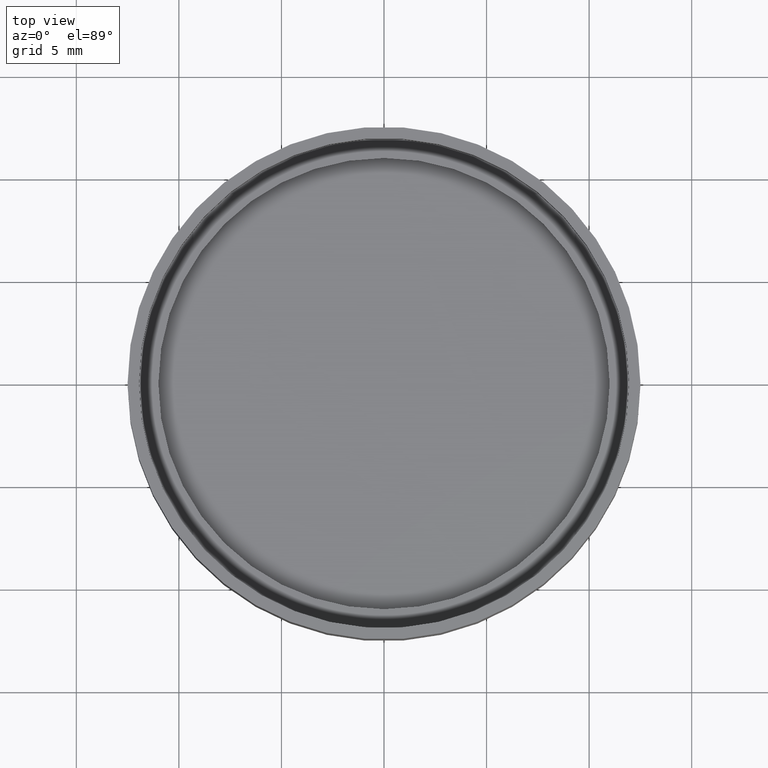
[diagram: clean part render]
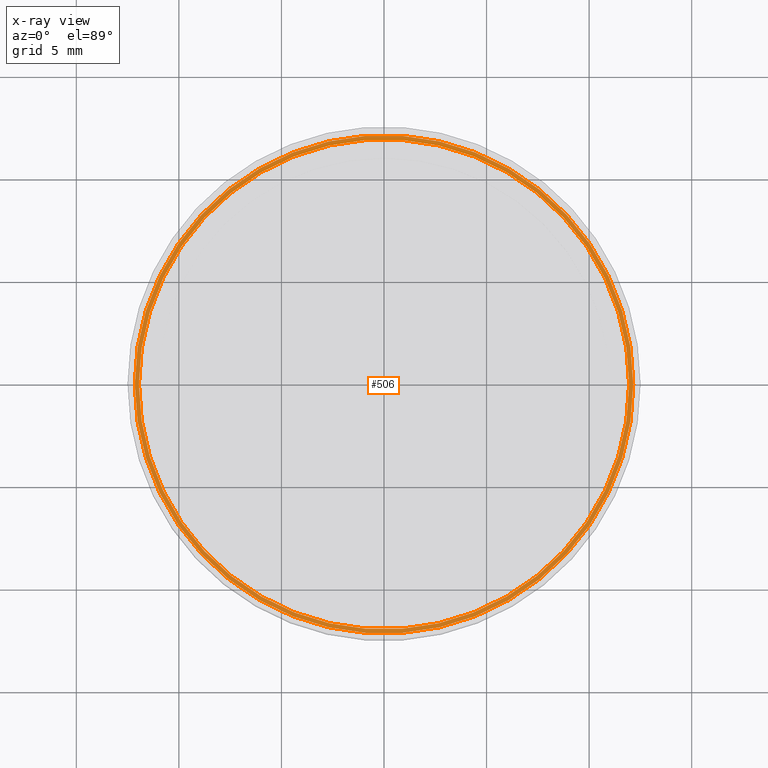
[diagram: x-ray — body ghosted, one internal face saturated and labeled with its STEP entity id]
A machine part, top view, then the same camera in x-ray: the body is ghosted and one INTERNAL B-rep face — a face not visible from any outside direction — is saturated and labeled: STEP entity #506.
In plain terms, the highlighted planar face has unit normal (-0, 0, -1).
Its self-contained STEP definition (entity closure, byte-faithful):
#7 = ORIENTED_EDGE ( 'NONE', *, *, #312, .T. ) ;
#17 = AXIS2_PLACEMENT_3D ( 'NONE', #508, #392, #665 ) ;
#40 = EDGE_LOOP ( 'NONE', ( #48, #216 ) ) ;
#48 = ORIENTED_EDGE ( 'NONE', *, *, #488, .T. ) ;
#56 = AXIS2_PLACEMENT_3D ( 'NONE', #222, #173, #122 ) ;
#62 = PLANE ( 'NONE',  #56 ) ;
#65 = CIRCLE ( 'NONE', #626, 11.94999999999999900 ) ;
#105 = CIRCLE ( 'NONE', #348, 12.14999999999999900 ) ;
#109 = DIRECTION ( 'NONE',  ( -1.000000000000000000, 0.0000000000000000000, 0.0000000000000000000 ) ) ;
#112 = AXIS2_PLACEMENT_3D ( 'NONE', #274, #230, #109 ) ;
#122 = DIRECTION ( 'NONE',  ( -1.000000000000000000, 0.0000000000000000000, 0.0000000000000000000 ) ) ;
#127 = ORIENTED_EDGE ( 'NONE', *, *, #415, .T. ) ;
#173 = DIRECTION ( 'NONE',  ( -0.0000000000000000000, 0.0000000000000000000, -1.000000000000000000 ) ) ;
#194 = FACE_BOUND ( 'NONE', #241, .T. ) ;
#216 = ORIENTED_EDGE ( 'NONE', *, *, #262, .T. ) ;
#217 = DIRECTION ( 'NONE',  ( -1.000000000000000000, 0.0000000000000000000, 0.0000000000000000000 ) ) ;
#222 = CARTESIAN_POINT ( 'NONE',  ( -12.14999999999999900, 0.0000000000000000000, 0.5810000000000011800 ) ) ;
#230 = DIRECTION ( 'NONE',  ( 0.0000000000000000000, 0.0000000000000000000, 1.000000000000000000 ) ) ;
#241 = EDGE_LOOP ( 'NONE', ( #7, #127 ) ) ;
#262 = EDGE_CURVE ( 'NONE', #661, #562, #105, .T. ) ;
#271 = DIRECTION ( 'NONE',  ( 0.0000000000000000000, 0.0000000000000000000, 1.000000000000000000 ) ) ;
#274 = CARTESIAN_POINT ( 'NONE',  ( 0.0000000000000000000, -4.665750208063244300E-017, 0.5810000000000011800 ) ) ;
#305 = CIRCLE ( 'NONE', #112, 11.94999999999999900 ) ;
#312 = EDGE_CURVE ( 'NONE', #490, #336, #65, .T. ) ;
#335 = FACE_OUTER_BOUND ( 'NONE', #40, .T. ) ;
#336 = VERTEX_POINT ( 'NONE', #450 ) ;
#348 = AXIS2_PLACEMENT_3D ( 'NONE', #666, #659, #557 ) ;
#392 = DIRECTION ( 'NONE',  ( -0.0000000000000000000, -0.0000000000000000000, -1.000000000000000000 ) ) ;
#415 = EDGE_CURVE ( 'NONE', #336, #490, #305, .T. ) ;
#450 = CARTESIAN_POINT ( 'NONE',  ( -11.94999999999999900, 1.416795422900454500E-015, 0.5810000000000011800 ) ) ;
#464 = CARTESIAN_POINT ( 'NONE',  ( 12.14999999999999900, 1.487945860964034000E-015, 0.5810000000000016300 ) ) ;
#488 = EDGE_CURVE ( 'NONE', #562, #661, #523, .T. ) ;
#490 = VERTEX_POINT ( 'NONE', #497 ) ;
#497 = CARTESIAN_POINT ( 'NONE',  ( 11.94999999999999900, -4.665750208063244300E-017, 0.5810000000000011800 ) ) ;
#506 = ADVANCED_FACE ( 'NONE', ( #335, #194 ), #62, .T. ) ;
#508 = CARTESIAN_POINT ( 'NONE',  ( 0.0000000000000000000, 0.0000000000000000000, 0.5810000000000016300 ) ) ;
#523 = CIRCLE ( 'NONE', #17, 12.14999999999999900 ) ;
#557 = DIRECTION ( 'NONE',  ( -1.000000000000000000, 0.0000000000000000000, 0.0000000000000000000 ) ) ;
#562 = VERTEX_POINT ( 'NONE', #631 ) ;
#626 = AXIS2_PLACEMENT_3D ( 'NONE', #667, #271, #217 ) ;
#631 = CARTESIAN_POINT ( 'NONE',  ( -12.14999999999999900, 0.0000000000000000000, 0.5810000000000016300 ) ) ;
#659 = DIRECTION ( 'NONE',  ( -0.0000000000000000000, -0.0000000000000000000, -1.000000000000000000 ) ) ;
#661 = VERTEX_POINT ( 'NONE', #464 ) ;
#665 = DIRECTION ( 'NONE',  ( -1.000000000000000000, 0.0000000000000000000, 0.0000000000000000000 ) ) ;
#666 = CARTESIAN_POINT ( 'NONE',  ( 0.0000000000000000000, 0.0000000000000000000, 0.5810000000000016300 ) ) ;
#667 = CARTESIAN_POINT ( 'NONE',  ( 0.0000000000000000000, -4.665750208063244300E-017, 0.5810000000000011800 ) ) ;